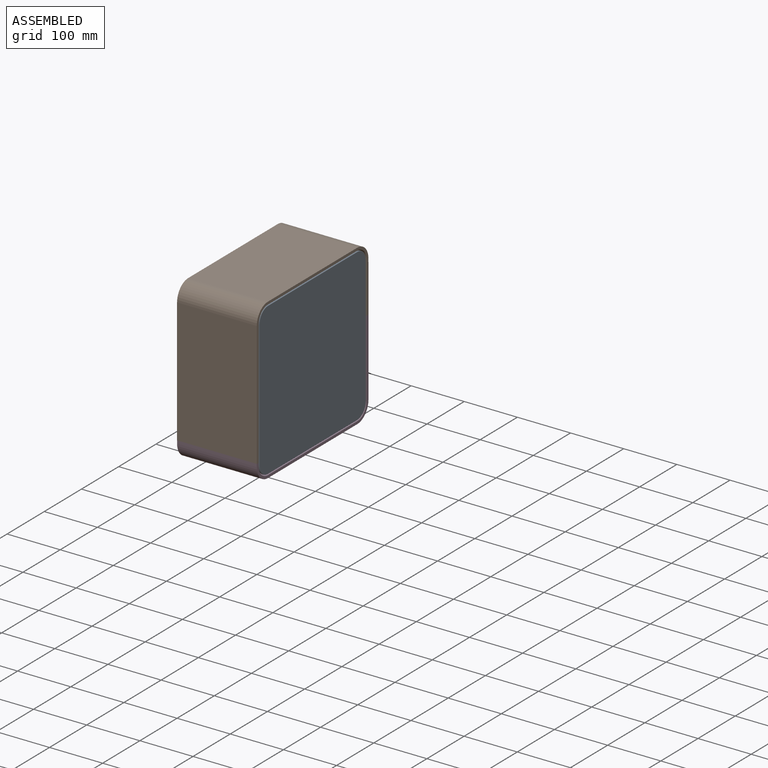
[diagram: assembled view]
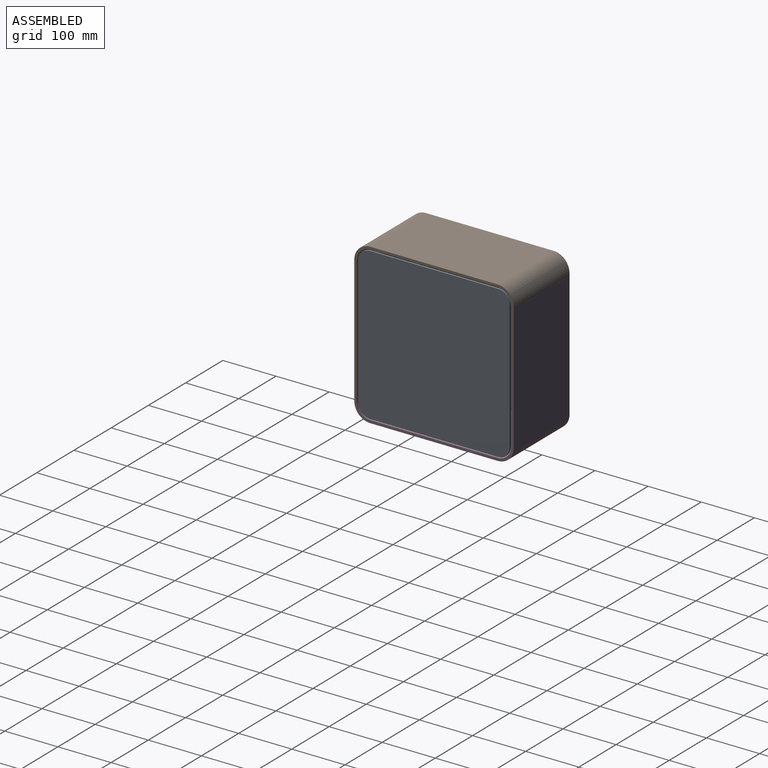
[diagram: assembled view, second angle]
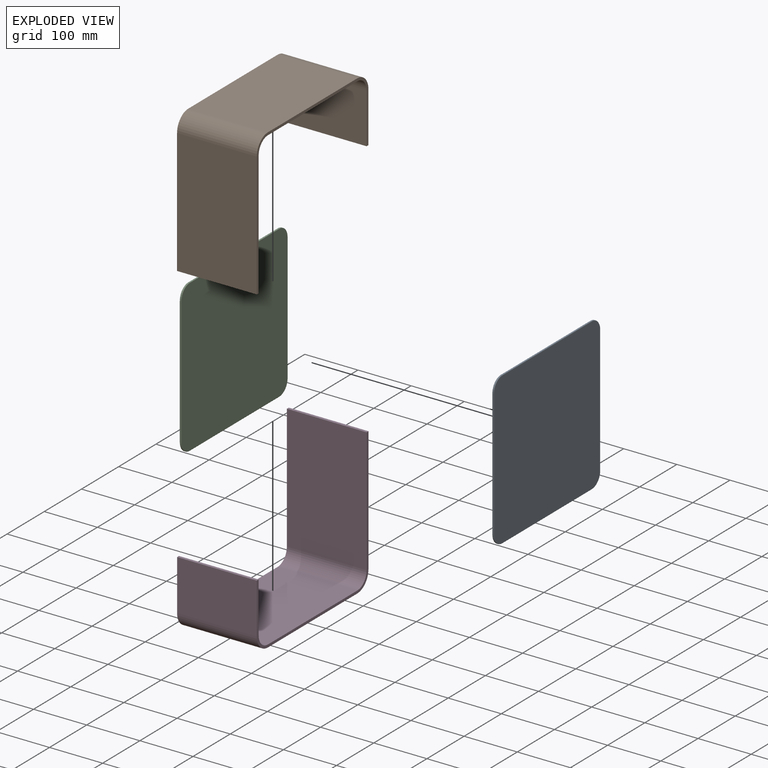
[diagram: exploded view]
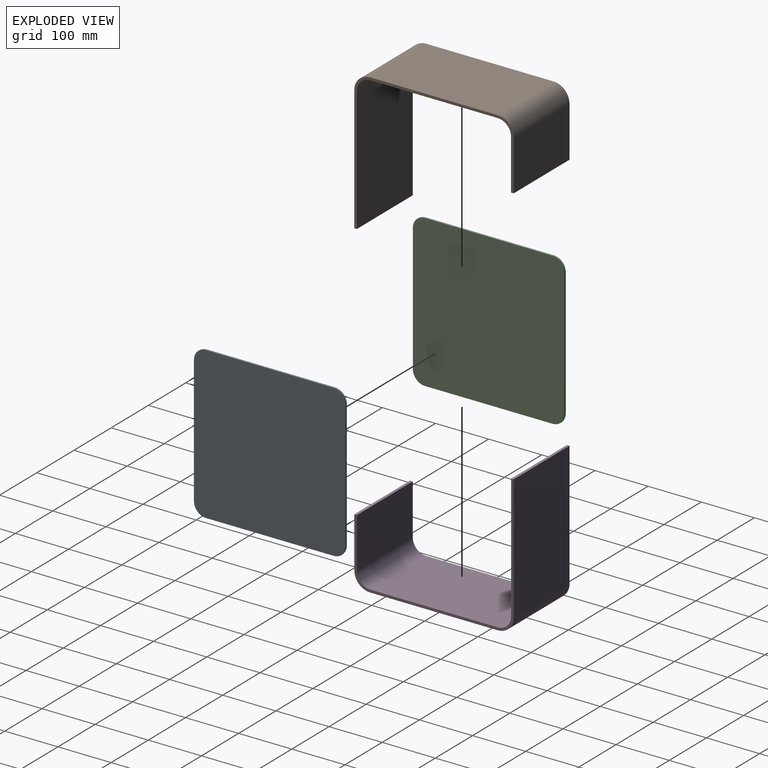
[diagram: exploded view, second angle]
ASSEMBLY  parts=4 mates=2
PART A: 26 faces, bbox 3x289.8x289.8 mm
  f0: plane 240x2mm, normal (0,-1,0), area 480mm2, adj f1,f7,f10,f18
  f1: cylinder r=23mm len=23mm, axis (-1,0,0), area 72.3mm2, adj f0,f2,f11,f19
  f2: plane 240x2mm, normal (0,0,-1), area 480mm2, adj f1,f3,f13,f21
  f3: cylinder r=23mm len=23mm, axis (-1,0,0), area 72.3mm2, adj f2,f4,f15,f23
  f4: plane 240x2mm, normal (0,1,0), area 480mm2, adj f3,f5,f17,f25
  f5: cylinder r=23mm len=23mm, axis (-1,0,0), area 72.3mm2, adj f4,f6,f16,f24
  f6: plane 240x2mm, normal (0,0,1), area 480mm2, adj f5,f7,f14,f22
  f7: cylinder r=23mm len=23mm, axis (-1,0,0), area 72.3mm2, adj f0,f6,f12,f20
  f8: plane 285x285mm, normal (1,0,0), area 80790.4mm2, adj f18,f19,f20,f21,f22,f23,f24,f25
  f9: plane 285x285mm, normal (-1,0,0), area 80790.4mm2, adj f10,f11,f12,f13,f14,f15,f16,f17
  f10: cylinder r=0.5mm len=240mm, axis (0,0,-1), area 188.5mm2, adj f0,f9,f11,f12
  f11: torus R=22.5mm, axis (1,0,0), area 28.2mm2, adj f1,f9,f10,f13
  f12: torus R=22.5mm, axis (1,0,0), area 28.2mm2, adj f7,f9,f10,f14
  f13: cylinder r=0.5mm len=240mm, axis (0,1,0), area 188.5mm2, adj f2,f9,f11,f15
  f14: cylinder r=0.5mm len=240mm, axis (0,-1,0), area 188.5mm2, adj f6,f9,f12,f16
  f15: torus R=22.5mm, axis (1,0,0), area 28.2mm2, adj f3,f9,f13,f17
  f16: torus R=22.5mm, axis (1,0,0), area 28.2mm2, adj f5,f9,f14,f17
  f17: cylinder r=0.5mm len=240mm, axis (0,0,1), area 188.5mm2, adj f4,f9,f15,f16
  f18: cylinder r=0.5mm len=240mm, axis (0,0,1), area 188.5mm2, adj f0,f8,f19,f20
  f19: torus R=22.5mm, axis (1,0,0), area 28.2mm2, adj f1,f8,f18,f21
  f20: torus R=22.5mm, axis (1,0,0), area 28.2mm2, adj f7,f8,f18,f22
  f21: cylinder r=0.5mm len=240mm, axis (0,-1,0), area 188.5mm2, adj f2,f8,f19,f23
  f22: cylinder r=0.5mm len=240mm, axis (0,1,0), area 188.5mm2, adj f6,f8,f20,f24
  f23: torus R=22.5mm, axis (1,0,0), area 28.2mm2, adj f3,f8,f21,f25
  f24: torus R=22.5mm, axis (1,0,0), area 28.2mm2, adj f5,f8,f22,f25
  f25: cylinder r=0.5mm len=240mm, axis (0,0,-1), area 188.5mm2, adj f4,f8,f23,f24
PART B: 22 faces, bbox 150x300x264.5 mm
  f0: plane 240x5mm, normal (1,0,0), area 1200mm2, adj f2,f3,f9,f19
  f1: plane 240x5mm, normal (-1,0,0), area 1200mm2, adj f2,f3,f10,f18
  f2: plane 240x150mm, normal (0,0,-1), area 36000mm2, adj f0,f1,f11,f20
  f3: plane 240x150mm, normal (0,0,1), area 36000mm2, adj f0,f1,f12,f21
  f4: plane 150x5mm, normal (0,0,1), area 750mm2, adj f5,f6,f7,f8
  f5: plane 95x5mm, normal (-1,0,0), area 475mm2, adj f4,f7,f8,f10
  f6: plane 95x5mm, normal (1,0,0), area 475mm2, adj f4,f7,f8,f9
  f7: plane 150x95mm, normal (0,-1,0), area 14250mm2, adj f4,f5,f6,f11
  f8: plane 150x95mm, normal (0,1,0), area 14250mm2, adj f4,f5,f6,f12
  f9: plane 30x30mm, normal (1,0,0), area 216mm2, adj f0,f6,f11,f12
  f10: plane 30x30mm, normal (-1,0,0), area 216mm2, adj f1,f5,f11,f12
  f11: cylinder r=30mm len=150mm, axis (1,0,0), area 7068.6mm2, adj f2,f7,f9,f10
  f12: cylinder r=25mm len=150mm, axis (1,0,0), area 5890.5mm2, adj f3,f8,f9,f10
  f13: plane 150x5mm, normal (0,0,1), area 750mm2, adj f14,f15,f16,f17
  f14: plane 234.5x5mm, normal (1,0,0), area 1172.5mm2, adj f13,f16,f17,f19
  f15: plane 234.5x5mm, normal (-1,0,0), area 1172.5mm2, adj f13,f16,f17,f18
  f16: plane 234.5x150mm, normal (0,1,0), area 35175mm2, adj f13,f14,f15,f20
  f17: plane 234.5x150mm, normal (0,-1,0), area 35175mm2, adj f13,f14,f15,f21
  f18: plane 30x30mm, normal (-1,0,0), area 216mm2, adj f1,f15,f20,f21
  f19: plane 30x30mm, normal (1,0,0), area 216mm2, adj f0,f14,f20,f21
  f20: cylinder r=30mm len=150mm, axis (-1,0,0), area 7068.6mm2, adj f2,f16,f18,f19
  f21: cylinder r=25mm len=150mm, axis (-1,0,0), area 5890.5mm2, adj f3,f17,f18,f19
PART C: same geometry as A
PART D: same geometry as B
PLACE A t=(73.5,-0.04,-0.04)mm
PLACE B rot(axis=(1,0,0),180deg) t=(0.01,-0.07,300.01)mm
PLACE C t=(-73.5,0,-0.1)mm
PLACE D at identity fixed
MATE planar C.f9 <-> D.f1  axis (-1,0,0) through (-75,0,149.9)mm
MATE planar A.f8 <-> D.f0  axis (1,0,0) through (75,-0.04,149.96)mm
